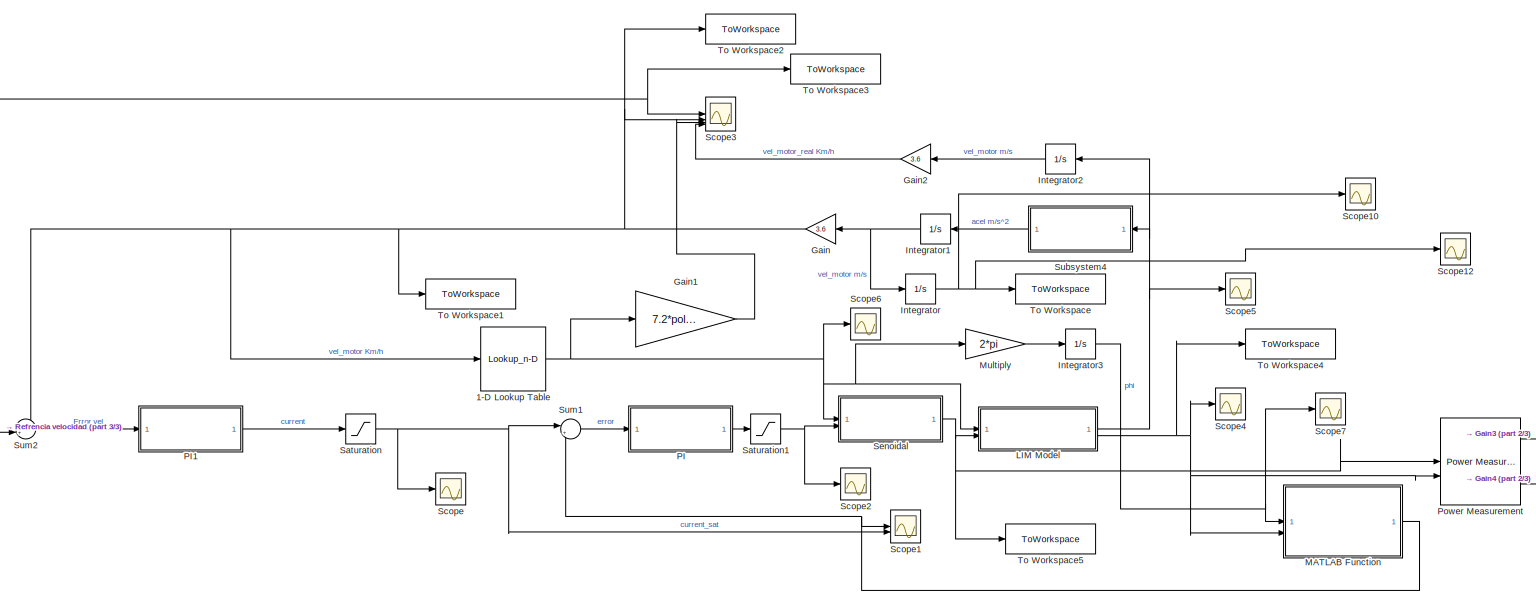
[diagram: root canvas - part 1/3, most of the canvas]
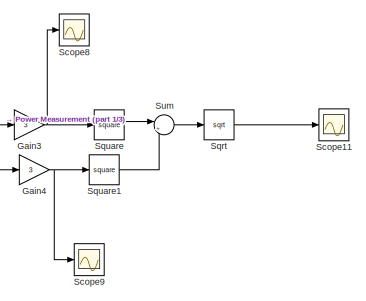
[diagram: root canvas - part 2/3, bottom right region]
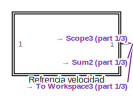
[diagram: root canvas - part 3/3, bottom left region]
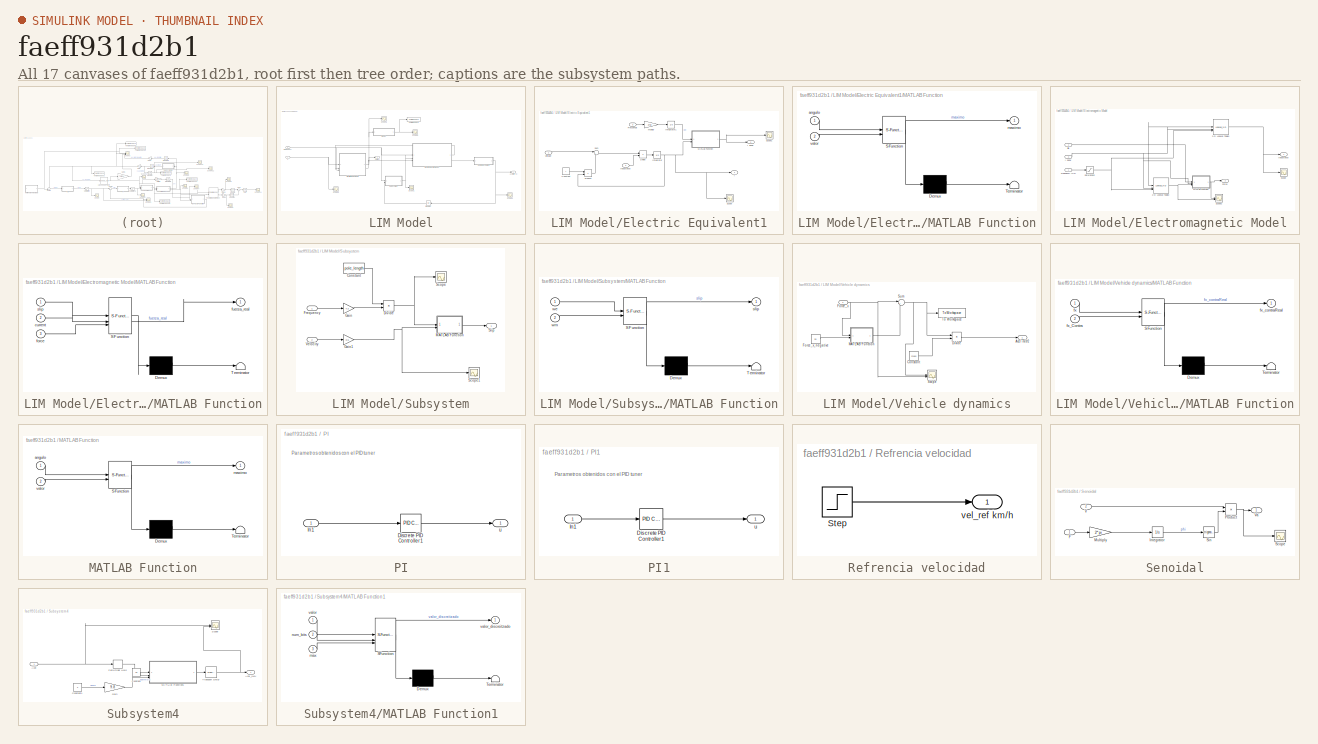
[diagram: thumbnail index - all 17 canvases of the model, root first then tree order]
MODEL slx_faeff931d2b1
KIND model
CONFIG AbsTol = auto
CONFIG EnableMultiTasking = off
CONFIG FixedStep = 0.01
CONFIG MaxStep = 0.00005
CONFIG MinStep = auto
CONFIG RelTol = 1e-3
CONFIG SampleTimeConstraint = Unconstrained
CONFIG SolverName = VariableStepAuto
CONFIG StartTime = 0.0
CONFIG StopTime = 4
BLOCK [Lookup_n-D] 1-D Lookup Table
  BreakpointsForDimension1 = vel_motor_max_f
  InputPortMap = u0
  InternalRulePriority = Speed
  NumberOfTableDimensions = 1
  RndMeth = Simplest
  Table = frec_max_f
BLOCK [Gain] Gain
  Gain = 3.6
  NameLocation = top
BLOCK [Gain] Gain1
  Gain = 7.2*pole_length
BLOCK [Gain] Gain2
  Gain = 3.6
  NameLocation = top
BLOCK [Gain] Gain3
  Gain = 3
BLOCK [Gain] Gain4
  Gain = 3
BLOCK [Integrator] Integrator
BLOCK [Integrator] Integrator1
  NameLocation = top
BLOCK [Integrator] Integrator2
  NameLocation = top
BLOCK [Integrator] Integrator3
  WrappedStateLowerValue = 0
  WrappedStateUpperValue = 2*pi
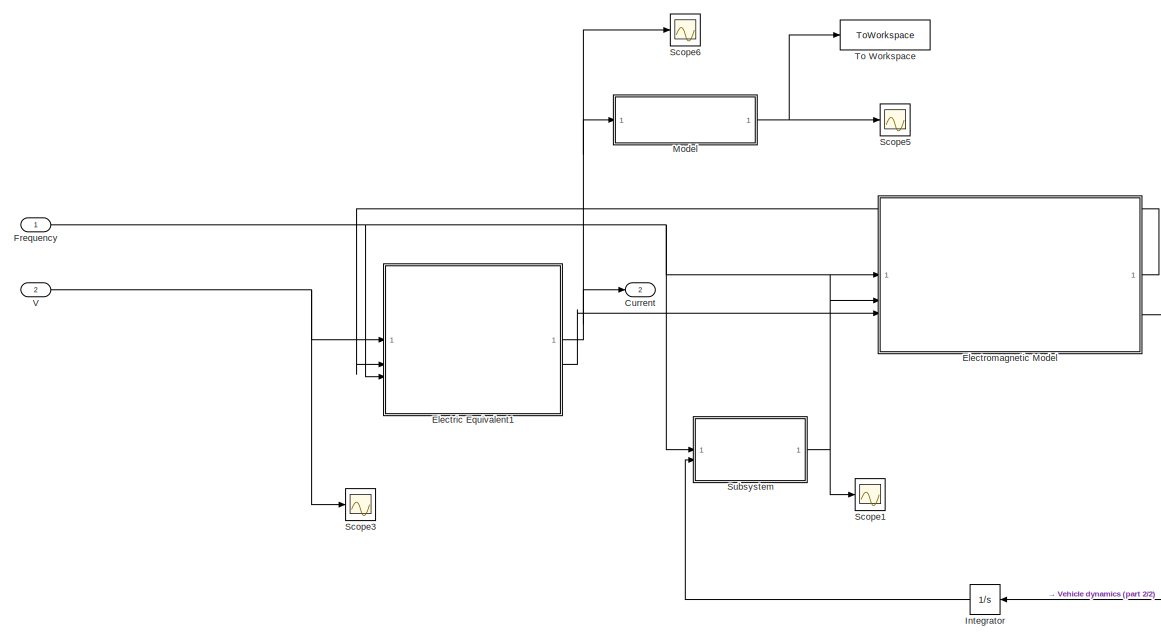
[diagram: LIM Model - part 1/2, center side, full height]
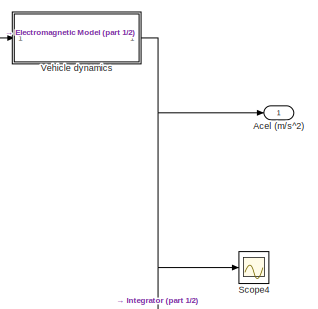
[diagram: LIM Model - part 2/2, bottom right region]
BLOCK [SubSystem] LIM Model
BLOCK [Outport] LIM Model/Acel (m//s^2)
BLOCK [Outport] LIM Model/Current
  Port = 2
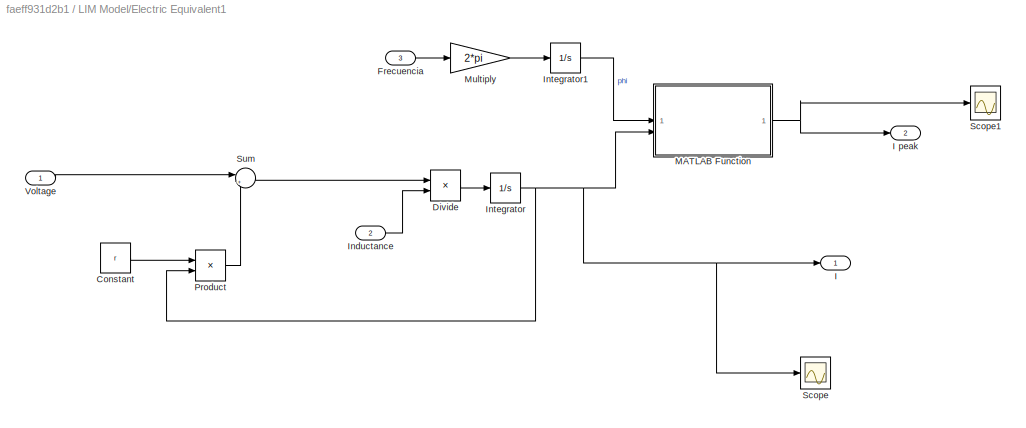
BLOCK [SubSystem] LIM Model/Electric Equivalent1
BLOCK [Constant] LIM Model/Electric Equivalent1/Constant
  Value = r
BLOCK [Product] LIM Model/Electric Equivalent1/Divide
  Inputs = */
BLOCK [Inport] LIM Model/Electric Equivalent1/Frecuencia
  Port = 3
BLOCK [Outport] LIM Model/Electric Equivalent1/I 
BLOCK [Outport] LIM Model/Electric Equivalent1/I peak
  Port = 2
BLOCK [Inport] LIM Model/Electric Equivalent1/Inductance
  Port = 2
BLOCK [Integrator] LIM Model/Electric Equivalent1/Integrator
BLOCK [Integrator] LIM Model/Electric Equivalent1/Integrator1
  WrappedStateLowerValue = 0
  WrappedStateUpperValue = 2*pi
BLOCK [SubSystem] LIM Model/Electric Equivalent1/MATLAB Function
  ErrorFcn = Stateflow.Translate.translate
  LibrarySourceBlock = simulink/User-Defined\nFunctions/MATLAB Function
  PermitHierarchicalResolution = ExplicitOnly
  SFBlockType = MATLAB Function
  TreatAsAtomicUnit = on
BLOCK [Demux] LIM Model/Electric Equivalent1/MATLAB Function/ Demux 
  Outputs = 1
BLOCK [S-Function] LIM Model/Electric Equivalent1/MATLAB Function/ SFunction 
  EnableBusSupport = on
  FunctionName = sf_sfun
  PortCounts = [2 2]
  SFcnIsStateOwnerBlock = off
  SFunctionDeploymentMode = off
  Tag = Stateflow S-Function 3
BLOCK [Terminator] LIM Model/Electric Equivalent1/MATLAB Function/ Terminator 
BLOCK [Inport] LIM Model/Electric Equivalent1/MATLAB Function/angulo
BLOCK [Outport] LIM Model/Electric Equivalent1/MATLAB Function/maximo
BLOCK [Inport] LIM Model/Electric Equivalent1/MATLAB Function/valor
  Port = 2
BLOCK [Gain] LIM Model/Electric Equivalent1/Multiply
  Gain = 2*pi
BLOCK [Product] LIM Model/Electric Equivalent1/Product
BLOCK [Scope] LIM Model/Electric Equivalent1/Scope
  Floating = off
  NumInputPorts = 1
  ScopeSpecificationString = Simulink.scopes.TimeScopeBlockCfg('CurrentConfiguration', extmgr.ConfigurationSet(extmgr.Configuration('Core','General UI',true),extmgr.Configuration('Core','Source UI',true),extmgr.Configuration('Sources','WiredSimulink',true,'DataLoggingVariableName','ScopeData1'),extmgr.Configuration('Visuals','Time Domain',true,'SerializedDisplays',{struct('MinYLimReal','-148.96883','MaxYLimReal','126.06169','...<+1458ch>
BLOCK [Scope] LIM Model/Electric Equivalent1/Scope1
  Floating = off
  NumInputPorts = 1
  ScopeSpecificationString = Simulink.scopes.TimeScopeBlockCfg('CurrentConfiguration', extmgr.ConfigurationSet(extmgr.Configuration('Core','General UI',true),extmgr.Configuration('Core','Source UI',true),extmgr.Configuration('Sources','WiredSimulink',true,'DataLoggingVariableName','ScopeData9'),extmgr.Configuration('Visuals','Time Domain',true,'SerializedDisplays',{struct('MinYLimReal','-11.61693','MaxYLimReal','104.55239','Y...<+1459ch>
BLOCK [Sum] LIM Model/Electric Equivalent1/Sum
  Inputs = |+-
BLOCK [Inport] LIM Model/Electric Equivalent1/Voltage
BLOCK [SubSystem] LIM Model/Electromagnetic Model
BLOCK [Lookup_n-D] LIM Model/Electromagnetic Model/2-D Lookup Table2
  BreakpointsForDimension1 = slipFuerza
  BreakpointsForDimension2 = Ipeak
  BreakpointsForDimension3 = frecuencia
  InputPortMap = u0,u1,u2
  InternalRulePriority = Speed
  NumberOfTableDimensions = 3
  RndMeth = Simplest
  Table = FuerzaXslip
BLOCK [Lookup_n-D] LIM Model/Electromagnetic Model/2-D Lookup Table3
  BreakpointsForDimension1 = Ipeak(2:(end-1))
  BreakpointsForDimension2 = slip
  BreakpointsForDimension3 = frecuencia
  InputPortMap = u0,u1,u2
  InternalRulePriority = Speed
  InterpMethod = Nearest
  NumberOfTableDimensions = 3
  RndMeth = Simplest
  Table = L
BLOCK [Outport] LIM Model/Electromagnetic Model/Force
  Port = 2
BLOCK [Inport] LIM Model/Electromagnetic Model/Frequency (Hz)
BLOCK [Inport] LIM Model/Electromagnetic Model/I peak
  Port = 3
BLOCK [Outport] LIM Model/Electromagnetic Model/Inductance
BLOCK [SubSystem] LIM Model/Electromagnetic Model/MATLAB Function
  ErrorFcn = Stateflow.Translate.translate
  LibrarySourceBlock = simulink/User-Defined\nFunctions/MATLAB Function
  PermitHierarchicalResolution = ExplicitOnly
  SFBlockType = MATLAB Function
  TreatAsAtomicUnit = on
BLOCK [Demux] LIM Model/Electromagnetic Model/MATLAB Function/ Demux 
  Outputs = 1
BLOCK [S-Function] LIM Model/Electromagnetic Model/MATLAB Function/ SFunction 
  EnableBusSupport = on
  FunctionName = sf_sfun
  PortCounts = [3 2]
  SFcnIsStateOwnerBlock = off
  SFunctionDeploymentMode = off
  Tag = Stateflow S-Function 1
BLOCK [Terminator] LIM Model/Electromagnetic Model/MATLAB Function/ Terminator 
BLOCK [Inport] LIM Model/Electromagnetic Model/MATLAB Function/current
  Port = 2
BLOCK [Inport] LIM Model/Electromagnetic Model/MATLAB Function/force
  Port = 3
BLOCK [Outport] LIM Model/Electromagnetic Model/MATLAB Function/fuerza_real
BLOCK [Inport] LIM Model/Electromagnetic Model/MATLAB Function/slip
BLOCK [Saturate] LIM Model/Electromagnetic Model/Saturation2
  LowerLimit = 3
  UpperLimit = 48
BLOCK [Scope] LIM Model/Electromagnetic Model/Scope
  Floating = off
  NumInputPorts = 1
  ScopeSpecificationString = Simulink.scopes.TimeScopeBlockCfg('CurrentConfiguration', extmgr.ConfigurationSet(extmgr.Configuration('Core','General UI',true),extmgr.Configuration('Core','Source UI',true),extmgr.Configuration('Sources','WiredSimulink',true,'DataLoggingVariableName','ScopeData3'),extmgr.Configuration('Visuals','Time Domain',true,'SerializedDisplays',{struct('MinYLimReal','0.00152','MaxYLimReal','0.00303','YLabe...<+1451ch>
BLOCK [Scope] LIM Model/Electromagnetic Model/Scope2
  Floating = off
  NumInputPorts = 2
  ScopeSpecificationString = Simulink.scopes.TimeScopeBlockCfg('CurrentConfiguration', extmgr.ConfigurationSet(extmgr.Configuration('Core','General UI',true),extmgr.Configuration('Core','Source UI',true),extmgr.Configuration('Sources','WiredSimulink',true,'DataLoggingVariableName','ScopeData2'),extmgr.Configuration('Visuals','Time Domain',true,'SerializedDisplays',{struct('MinYLimReal','-149.17628','MaxYLimReal','1159.19992',...<+1431ch>
BLOCK [Inport] LIM Model/Electromagnetic Model/Slip
  Port = 2
BLOCK [Inport] LIM Model/Frequency
BLOCK [Integrator] LIM Model/Integrator
  NameLocation = top
BLOCK [ModelReference] LIM Model/Model
  ModelNameDialog = Bloque_calentamiento.slx
  ModelReferenceVersion = 3.6
BLOCK [Scope] LIM Model/Scope1
  Floating = off
  NumInputPorts = 1
  ScopeSpecificationString = Simulink.scopes.TimeScopeBlockCfg('CurrentConfiguration', extmgr.ConfigurationSet(extmgr.Configuration('Core','General UI',true),extmgr.Configuration('Core','Source UI',true),extmgr.Configuration('Sources','WiredSimulink',true,'DataLoggingVariableName','ScopeData1'),extmgr.Configuration('Visuals','Time Domain',true,'SerializedDisplays',{struct('MinYLimReal','-0.00569','MaxYLimReal','1.11253','YLab...<+1441ch>
BLOCK [Scope] LIM Model/Scope3
  Floating = off
  NumInputPorts = 1
  ScopeSpecificationString = Simulink.scopes.TimeScopeBlockCfg('CurrentConfiguration', extmgr.ConfigurationSet(extmgr.Configuration('Core','General UI',true),extmgr.Configuration('Core','Source UI',true),extmgr.Configuration('Sources','WiredSimulink',true),extmgr.Configuration('Visuals','Time Domain',true,'SerializedDisplays',{struct('MinYLimReal','-72.13544','MaxYLimReal','72.08699','YLabelReal','','MinYLimMag','0.00000','Ma...<+1372ch>
BLOCK [Scope] LIM Model/Scope4
  Floating = off
  NumInputPorts = 1
  ScopeSpecificationString = Simulink.scopes.TimeScopeBlockCfg('CurrentConfiguration', extmgr.ConfigurationSet(extmgr.Configuration('Core','General UI',true),extmgr.Configuration('Core','Source UI',true),extmgr.Configuration('Sources','WiredSimulink',true,'DataLoggingVariableName','ScopeData3'),extmgr.Configuration('Visuals','Time Domain',true,'SerializedDisplays',{struct('MinYLimReal','-0.63171','MaxYLimReal','5.68538','YLab...<+1408ch>
BLOCK [Scope] LIM Model/Scope5
  Floating = off
  NumInputPorts = 1
  ScopeSpecificationString = Simulink.scopes.TimeScopeBlockCfg('CurrentConfiguration', extmgr.ConfigurationSet(extmgr.Configuration('Core','General UI',true),extmgr.Configuration('Core','Source UI',true),extmgr.Configuration('Sources','WiredSimulink',true,'DataLoggingVariableName','ScopeData6'),extmgr.Configuration('Visuals','Time Domain',true,'SerializedDisplays',{struct('MinYLimReal','38.84294','MaxYLimReal','50.41353','YLa...<+1395ch>
BLOCK [Scope] LIM Model/Scope6
  Floating = off
  NumInputPorts = 1
  ScopeSpecificationString = Simulink.scopes.TimeScopeBlockCfg('CurrentConfiguration', extmgr.ConfigurationSet(extmgr.Configuration('Core','General UI',true),extmgr.Configuration('Core','Source UI',true),extmgr.Configuration('Sources','WiredSimulink',true,'DataLoggingVariableName','ScopeData4'),extmgr.Configuration('Visuals','Time Domain',true,'SerializedDisplays',{struct('MinYLimReal','-123.61481','MaxYLimReal','123.75772','...<+1468ch>
BLOCK [SubSystem] LIM Model/Subsystem
BLOCK [Constant] LIM Model/Subsystem/Constant
  Value = pole_length
BLOCK [Product] LIM Model/Subsystem/Divide
  Inputs = **
BLOCK [Inport] LIM Model/Subsystem/Frequency
BLOCK [Gain] LIM Model/Subsystem/Gain
  Gain = 7.2
BLOCK [Gain] LIM Model/Subsystem/Gain1
  Gain = 3.6
BLOCK [SubSystem] LIM Model/Subsystem/MATLAB Function
  ErrorFcn = Stateflow.Translate.translate
  PermitHierarchicalResolution = ExplicitOnly
  SFBlockType = MATLAB Function
  TreatAsAtomicUnit = on
BLOCK [Demux] LIM Model/Subsystem/MATLAB Function/ Demux 
  Outputs = 1
BLOCK [S-Function] LIM Model/Subsystem/MATLAB Function/ SFunction 
  EnableBusSupport = on
  FunctionName = sf_sfun
  PortCounts = [2 2]
  SFcnIsStateOwnerBlock = off
  SFunctionDeploymentMode = off
  Tag = Stateflow S-Function 4
BLOCK [Terminator] LIM Model/Subsystem/MATLAB Function/ Terminator 
BLOCK [Outport] LIM Model/Subsystem/MATLAB Function/slip
BLOCK [Inport] LIM Model/Subsystem/MATLAB Function/we
BLOCK [Inport] LIM Model/Subsystem/MATLAB Function/wm
  Port = 2
BLOCK [Scope] LIM Model/Subsystem/Scope
  Floating = off
  NumInputPorts = 1
  ScopeSpecificationString = Simulink.scopes.TimeScopeBlockCfg('CurrentConfiguration', extmgr.ConfigurationSet(extmgr.Configuration('Core','General UI',true),extmgr.Configuration('Core','Source UI',true),extmgr.Configuration('Sources','WiredSimulink',true,'DataLoggingVariableName','ScopeData2'),extmgr.Configuration('Visuals','Time Domain',true,'SerializedDisplays',{struct('MinYLimReal','25.2944','MaxYLimReal','45.2944','YLabe...<+1427ch>
BLOCK [Scope] LIM Model/Subsystem/Scope1
  Floating = off
  NumInputPorts = 1
  ScopeSpecificationString = Simulink.scopes.TimeScopeBlockCfg('CurrentConfiguration', extmgr.ConfigurationSet(extmgr.Configuration('Core','General UI',true),extmgr.Configuration('Core','Source UI',true),extmgr.Configuration('Sources','WiredSimulink',true,'DataLoggingVariableName','ScopeData4'),extmgr.Configuration('Visuals','Time Domain',true,'SerializedDisplays',{struct('MinYLimReal','-4.30459','MaxYLimReal','38.74132','YLa...<+1418ch>
BLOCK [Outport] LIM Model/Subsystem/Slip
BLOCK [Inport] LIM Model/Subsystem/Velocity
  Port = 2
BLOCK [ToWorkspace] LIM Model/To Workspace
  FixptAsFi = on
  MaxDataPoints = inf
  SampleTime = -1
  VariableName = Temp
BLOCK [Inport] LIM Model/V 
  Port = 2
BLOCK [SubSystem] LIM Model/Vehicle dynamics
BLOCK [Outport] LIM Model/Vehicle dynamics/Acel m//s^2
BLOCK [Constant] LIM Model/Vehicle dynamics/Constant
  Value = mass
BLOCK [Product] LIM Model/Vehicle dynamics/Divide
  Inputs = */
BLOCK [Inport] LIM Model/Vehicle dynamics/Force_x
BLOCK [Constant] LIM Model/Vehicle dynamics/Force_x_negative
  Value = 20
BLOCK [SubSystem] LIM Model/Vehicle dynamics/MATLAB Function
  ErrorFcn = Stateflow.Translate.translate
  LibrarySourceBlock = simulink/User-Defined\nFunctions/MATLAB Function
  PermitHierarchicalResolution = ExplicitOnly
  SFBlockType = MATLAB Function
  TreatAsAtomicUnit = on
BLOCK [Demux] LIM Model/Vehicle dynamics/MATLAB Function/ Demux 
  Outputs = 1
BLOCK [S-Function] LIM Model/Vehicle dynamics/MATLAB Function/ SFunction 
  EnableBusSupport = on
  FunctionName = sf_sfun
  PortCounts = [2 2]
  SFcnIsStateOwnerBlock = off
  SFunctionDeploymentMode = off
  Tag = Stateflow S-Function 2
BLOCK [Terminator] LIM Model/Vehicle dynamics/MATLAB Function/ Terminator 
BLOCK [Inport] LIM Model/Vehicle dynamics/MATLAB Function/fx
BLOCK [Inport] LIM Model/Vehicle dynamics/MATLAB Function/fx_Contra
  Port = 2
BLOCK [Outport] LIM Model/Vehicle dynamics/MATLAB Function/fx_contraReal
BLOCK [Scope] LIM Model/Vehicle dynamics/Scope
  Floating = off
  NumInputPorts = 2
  ScopeSpecificationString = Simulink.scopes.TimeScopeBlockCfg('CurrentConfiguration', extmgr.ConfigurationSet(extmgr.Configuration('Core','General UI',true),extmgr.Configuration('Core','Source UI',true),extmgr.Configuration('Sources','WiredSimulink',true,'DataLoggingVariableName','ScopeData11'),extmgr.Configuration('Visuals','Time Domain',true,'SerializedDisplays',{struct('MinYLimReal','765.61966','MaxYLimReal','1101.18771',...<+1435ch>
BLOCK [Sum] LIM Model/Vehicle dynamics/Sum
  Inputs = |+-
BLOCK [ToWorkspace] LIM Model/Vehicle dynamics/To Workspace
  FixptAsFi = on
  MaxDataPoints = inf
  SampleTime = -1
  VariableName = forceX
BLOCK [SubSystem] MATLAB Function
  ErrorFcn = Stateflow.Translate.translate
  LibrarySourceBlock = simulink/User-Defined\nFunctions/MATLAB Function
  PermitHierarchicalResolution = ExplicitOnly
  SFBlockType = MATLAB Function
  TreatAsAtomicUnit = on
BLOCK [Demux] MATLAB Function/ Demux 
  Outputs = 1
BLOCK [S-Function] MATLAB Function/ SFunction 
  EnableBusSupport = on
  FunctionName = sf_sfun
  PortCounts = [2 2]
  SFcnIsStateOwnerBlock = off
  SFunctionDeploymentMode = off
  Tag = Stateflow S-Function 5
BLOCK [Terminator] MATLAB Function/ Terminator 
BLOCK [Inport] MATLAB Function/angulo
BLOCK [Outport] MATLAB Function/maximo
BLOCK [Inport] MATLAB Function/valor
  Port = 2
BLOCK [Gain] Multiply
  Gain = 2*pi
BLOCK [SubSystem] PI
BLOCK [Reference] PI/Discrete PID Controller1  REF=slpidlib/PID Controller
  LibrarySourceBlock = simulink/Discrete/Discrete PID Controller
  SourceBlock = slpidlib/PID Controller
  SourceType = PID 1dof
BLOCK [Inport] PI/In1
BLOCK [Outport] PI/u
BLOCK [SubSystem] PI1
BLOCK [Reference] PI1/Discrete PID Controller1  REF=slpidlib/PID Controller
  LibrarySourceBlock = simulink/Discrete/Discrete PID Controller
  SourceBlock = slpidlib/PID Controller
  SourceType = PID 1dof
BLOCK [Inport] PI1/In1
BLOCK [Outport] PI1/u
BLOCK [Reference] Power Measurement  REF=eePowerMeasurement/Power
Measurement
  LibrarySourceBlock = ee_sl_lib/Measurements/Power\nMeasurement
  SourceBlock = eePowerMeasurement/Power\nMeasurement
  SourceType = Power Measurement
BLOCK [SubSystem] Refrencia velocidad
BLOCK [Step] Refrencia velocidad/Step
  After = 35
  SampleTime = 0
  Time = 0.5
BLOCK [Outport] Refrencia velocidad/vel_ref km//h
BLOCK [Saturate] Saturation
  LowerLimit = -100
  UpperLimit = 100
BLOCK [Saturate] Saturation1
  LowerLimit = -200
  UpperLimit = 200
BLOCK [Scope] Scope
  Floating = off
  NumInputPorts = 1
  ScopeSpecificationString = Simulink.scopes.TimeScopeBlockCfg('CurrentConfiguration', extmgr.ConfigurationSet(extmgr.Configuration('Core','General UI',true),extmgr.Configuration('Core','Source UI',true),extmgr.Configuration('Sources','WiredSimulink',true,'DataLoggingVariableName','ScopeData3'),extmgr.Configuration('Visuals','Time Domain',true,'SerializedDisplays',{struct('MinYLimReal','-12.5','MaxYLimReal','112.5','YLabelRea...<+1385ch>
BLOCK [Scope] Scope1
  Floating = off
  NumInputPorts = 2
  ScopeSpecificationString = Simulink.scopes.TimeScopeBlockCfg('CurrentConfiguration', extmgr.ConfigurationSet(extmgr.Configuration('Core','General UI',true),extmgr.Configuration('Core','Source UI',true),extmgr.Configuration('Sources','WiredSimulink',true,'DataLoggingVariableName','ScopeData7'),extmgr.Configuration('Visuals','Time Domain',true,'SerializedDisplays',{struct('MinYLimReal','-12.5','MaxYLimReal','112.5','YLabelRea...<+1401ch>
BLOCK [Scope] Scope10
  Floating = off
  NumInputPorts = 1
  ScopeSpecificationString = Simulink.scopes.TimeScopeBlockCfg('CurrentConfiguration', extmgr.ConfigurationSet(extmgr.Configuration('Core','General UI',true),extmgr.Configuration('Core','Source UI',true),extmgr.Configuration('Sources','WiredSimulink',true,'DataLoggingVariableName','ScopeData4'),extmgr.Configuration('Visuals','Time Domain',true,'SerializedDisplays',{struct('MinYLimReal','-2.89532','MaxYLimReal','26.05736','YLa...<+1373ch>
BLOCK [Scope] Scope11
  Floating = off
  NumInputPorts = 1
  ScopeSpecificationString = Simulink.scopes.TimeScopeBlockCfg('CurrentConfiguration', extmgr.ConfigurationSet(extmgr.Configuration('Core','General UI',true),extmgr.Configuration('Core','Source UI',true),extmgr.Configuration('Sources','WiredSimulink',true,'DataLoggingVariableName','ScopeData5'),extmgr.Configuration('Visuals','Time Domain',true,'SerializedDisplays',{struct('MinYLimReal','-898.12979','MaxYLimReal','8083.16814',...<+1419ch>
BLOCK [Scope] Scope12
  Floating = off
  NumInputPorts = 1
  ScopeSpecificationString = Simulink.scopes.TimeScopeBlockCfg('CurrentConfiguration', extmgr.ConfigurationSet(extmgr.Configuration('Core','General UI',true),extmgr.Configuration('Core','Source UI',true),extmgr.Configuration('Sources','WiredSimulink',true,'DataLoggingVariableName','ScopeData6'),extmgr.Configuration('Visuals','Time Domain',true,'SerializedDisplays',{struct('MinYLimReal','-2.89532','MaxYLimReal','26.05736','YLa...<+1373ch>
BLOCK [Scope] Scope2
  Floating = off
  NumInputPorts = 1
  ScopeSpecificationString = Simulink.scopes.TimeScopeBlockCfg('CurrentConfiguration', extmgr.ConfigurationSet(extmgr.Configuration('Core','General UI',true),extmgr.Configuration('Core','Source UI',true),extmgr.Configuration('Sources','WiredSimulink',true,'DataLoggingVariableName','ScopeData8'),extmgr.Configuration('Visuals','Time Domain',true,'SerializedDisplays',{struct('MinYLimReal','-231.15042','MaxYLimReal','80.35376','Y...<+1401ch>
BLOCK [Scope] Scope3
  Floating = off
  NumInputPorts = 4
  ScopeSpecificationString = Simulink.scopes.TimeScopeBlockCfg('CurrentConfiguration', extmgr.ConfigurationSet(extmgr.Configuration('Core','General UI',true),extmgr.Configuration('Core','Source UI',true),extmgr.Configuration('Sources','WiredSimulink',true,'DataLoggingVariableName','ScopeData1'),extmgr.Configuration('Visuals','Time Domain',true,'SerializedDisplays',{struct('MinYLimReal','-4.92481','MaxYLimReal','44.3232','YLab...<+1589ch>
BLOCK [Scope] Scope4
  Floating = off
  NumInputPorts = 1
  ScopeSpecificationString = Simulink.scopes.TimeScopeBlockCfg('CurrentConfiguration', extmgr.ConfigurationSet(extmgr.Configuration('Core','General UI',true),extmgr.Configuration('Core','Source UI',true),extmgr.Configuration('Sources','WiredSimulink',true,'DataLoggingVariableName','ScopeData1'),extmgr.Configuration('Visuals','Time Domain',true,'SerializedDisplays',{struct('MinYLimReal','-536.00072','MaxYLimReal','547.10398','...<+1496ch>
BLOCK [Scope] Scope5
  Floating = off
  NumInputPorts = 1
  ScopeSpecificationString = Simulink.scopes.TimeScopeBlockCfg('CurrentConfiguration', extmgr.ConfigurationSet(extmgr.Configuration('Core','General UI',true),extmgr.Configuration('Core','Source UI',true),extmgr.Configuration('Sources','WiredSimulink',true,'DataLoggingVariableName','ScopeData10'),extmgr.Configuration('Visuals','Time Domain',true,'SerializedDisplays',{struct('MinYLimReal','-0.62906','MaxYLimReal','5.6615','YLab...<+1367ch>
BLOCK [Scope] Scope6
  Floating = off
  NumInputPorts = 1
  ScopeSpecificationString = Simulink.scopes.TimeScopeBlockCfg('CurrentConfiguration', extmgr.ConfigurationSet(extmgr.Configuration('Core','General UI',true),extmgr.Configuration('Core','Source UI',true),extmgr.Configuration('Sources','WiredSimulink',true,'DataLoggingVariableName','ScopeData12'),extmgr.Configuration('Visuals','Time Domain',true,'SerializedDisplays',{struct('MinYLimReal','4.12497','MaxYLimReal','52.875','YLabe...<+1370ch>
BLOCK [Scope] Scope7
  Floating = off
  NumInputPorts = 1
  ScopeSpecificationString = Simulink.scopes.TimeScopeBlockCfg('CurrentConfiguration', extmgr.ConfigurationSet(extmgr.Configuration('Core','General UI',true),extmgr.Configuration('Core','Source UI',true),extmgr.Configuration('Sources','WiredSimulink',true,'DataLoggingVariableName','ScopeData1'),extmgr.Configuration('Visuals','Time Domain',true,'SerializedDisplays',{struct('MinYLimReal','-105.20811','MaxYLimReal','946.87302','...<+1376ch>
BLOCK [Scope] Scope8
  Floating = off
  NumInputPorts = 1
  ScopeSpecificationString = Simulink.scopes.TimeScopeBlockCfg('CurrentConfiguration', extmgr.ConfigurationSet(extmgr.Configuration('Core','General UI',true),extmgr.Configuration('Core','Source UI',true),extmgr.Configuration('Sources','WiredSimulink',true,'DataLoggingVariableName','ScopeData2'),extmgr.Configuration('Visuals','Time Domain',true,'SerializedDisplays',{struct('MinYLimReal','-713.68786','MaxYLimReal','6221.7084','...<+1584ch>
BLOCK [Scope] Scope9
  Floating = off
  NumInputPorts = 1
  ScopeSpecificationString = Simulink.scopes.TimeScopeBlockCfg('CurrentConfiguration', extmgr.ConfigurationSet(extmgr.Configuration('Core','General UI',true),extmgr.Configuration('Core','Source UI',true),extmgr.Configuration('Sources','WiredSimulink',true,'DataLoggingVariableName','ScopeData3'),extmgr.Configuration('Visuals','Time Domain',true,'SerializedDisplays',{struct('MinYLimReal','-593.91624','MaxYLimReal','5271.3829','...<+1418ch>
BLOCK [SubSystem] Senoidal
BLOCK [Inport] Senoidal/F
BLOCK [Integrator] Senoidal/Integrator
  WrapState = on
  WrappedStateLowerValue = 0
  WrappedStateUpperValue = 2*pi
BLOCK [Gain] Senoidal/Multiply
  Gain = 2*pi
BLOCK [Product] Senoidal/Product
BLOCK [Scope] Senoidal/Scope
  Floating = off
  NumInputPorts = 1
  ScopeSpecificationString = Simulink.scopes.TimeScopeBlockCfg('CurrentConfiguration', extmgr.ConfigurationSet(extmgr.Configuration('Core','General UI',true),extmgr.Configuration('Core','Source UI',true),extmgr.Configuration('Sources','WiredSimulink',true,'DataLoggingVariableName','ScopeData5'),extmgr.Configuration('Visuals','Time Domain',true,'SerializedDisplays',{struct('MinYLimReal','-34.93759','MaxYLimReal','28.58656','YL...<+1391ch>
BLOCK [Trigonometry] Senoidal/Sin
BLOCK [Inport] Senoidal/V
  Port = 2
BLOCK [Outport] Senoidal/Va
BLOCK [Sqrt] Sqrt
BLOCK [Math] Square
  Operator = square
BLOCK [Math] Square1
  Operator = square
BLOCK [SubSystem] Subsystem4
  NameLocation = top
BLOCK [Inport] Subsystem4/Acel
BLOCK [Outport] Subsystem4/Acel_IMU
BLOCK [Constant] Subsystem4/Constant
  Value = 16
BLOCK [Constant] Subsystem4/Constant1
  Value = 2
BLOCK [Gain] Subsystem4/Gain
  Gain = 9.8
BLOCK [SubSystem] Subsystem4/MATLAB Function1
  ErrorFcn = Stateflow.Translate.translate
  LibrarySourceBlock = simulink/User-Defined\nFunctions/MATLAB Function
  PermitHierarchicalResolution = ExplicitOnly
  SFBlockType = MATLAB Function
  TreatAsAtomicUnit = on
BLOCK [Demux] Subsystem4/MATLAB Function1/ Demux 
  Outputs = 1
BLOCK [S-Function] Subsystem4/MATLAB Function1/ SFunction 
  EnableBusSupport = on
  FunctionName = sf_sfun
  PortCounts = [3 2]
  SFcnIsStateOwnerBlock = off
  SFunctionDeploymentMode = off
  Tag = Stateflow S-Function 9
BLOCK [Terminator] Subsystem4/MATLAB Function1/ Terminator 
BLOCK [Inport] Subsystem4/MATLAB Function1/max
  Port = 3
BLOCK [Inport] Subsystem4/MATLAB Function1/num_bits
  Port = 2
BLOCK [Inport] Subsystem4/MATLAB Function1/valor
BLOCK [Outport] Subsystem4/MATLAB Function1/valor_discreitzado
BLOCK [Scope] Subsystem4/Scope
  Floating = off
  NumInputPorts = 2
  ScopeSpecificationString = Simulink.scopes.TimeScopeBlockCfg('CurrentConfiguration', extmgr.ConfigurationSet(extmgr.Configuration('Core','General UI',true),extmgr.Configuration('Core','Source UI',true),extmgr.Configuration('Sources','WiredSimulink',true,'DataLoggingVariableName','ScopeData3'),extmgr.Configuration('Visuals','Time Domain',true,'SerializedDisplays',{struct('MinYLimReal','2.97777','MaxYLimReal','3.36893','YLabe...<+1456ch>
BLOCK [TransportDelay] Subsystem4/Transport Delay
  DelayTime = 0.001
BLOCK [ZeroOrderHold] Subsystem4/Zero-Order Hold
  SampleTime = 0.001
BLOCK [Sum] Sum
  Inputs = |++
BLOCK [Sum] Sum1
  Inputs = |+-
BLOCK [Sum] Sum2
  Inputs = -+|
BLOCK [ToWorkspace] To Workspace
  FixptAsFi = on
  MaxDataPoints = inf
  SampleTime = -1
  VariableName = pos
BLOCK [ToWorkspace] To Workspace1
  FixptAsFi = on
  MaxDataPoints = inf
  SampleTime = -1
  VariableName = vel
BLOCK [ToWorkspace] To Workspace2
  FixptAsFi = on
  MaxDataPoints = inf
  SampleTime = -1
  VariableName = vel_motor
BLOCK [ToWorkspace] To Workspace3
  FixptAsFi = on
  MaxDataPoints = inf
  SampleTime = -1
  VariableName = vel_ref
BLOCK [ToWorkspace] To Workspace4
  FixptAsFi = on
  MaxDataPoints = inf
  SampleTime = -1
  VariableName = current
BLOCK [ToWorkspace] To Workspace5
  FixptAsFi = on
  MaxDataPoints = inf
  SampleTime = -1
  SaveFormat = Timeseries
  VariableName = voltageA
ANNOTATION PI: Parametros obtenidos con el PID tuner
ANNOTATION PI1: Parametros obtenidos con el PID tuner
NET 1-D Lookup Table:1 -> Gain1:1, LIM Model:1, Multiply:1, Scope6:1, Senoidal:1
LINE Gain1:1 -> Scope3:3
LINE Gain2:1 -> Scope3:4
NET Gain3:1 -> Scope8:1, Square:1
NET Gain4:1 -> Scope9:1, Square1:1
NET Gain:1 -> 1-D Lookup Table:1, Scope3:2, Sum2:1, To Workspace1:1, To Workspace2:1
NET Integrator1:1 -> Gain:1, Integrator:1
LINE Integrator2:1 -> Gain2:1
NET Integrator3:1 -> MATLAB Function:1, Scope7:1
NET Integrator:1 -> Scope10:1, Scope12:1, To Workspace:1
LINE LIM Model/Electric Equivalent1/Constant:1 -> LIM Model/Electric Equivalent1/Product:1
LINE LIM Model/Electric Equivalent1/Divide:1 -> LIM Model/Electric Equivalent1/Integrator:1
LINE LIM Model/Electric Equivalent1/Frecuencia:1 -> LIM Model/Electric Equivalent1/Multiply:1
LINE LIM Model/Electric Equivalent1/Inductance:1 -> LIM Model/Electric Equivalent1/Divide:2
LINE LIM Model/Electric Equivalent1/Integrator1:1 -> LIM Model/Electric Equivalent1/MATLAB Function:1
NET LIM Model/Electric Equivalent1/Integrator:1 -> LIM Model/Electric Equivalent1/I :1, LIM Model/Electric Equivalent1/MATLAB Function:2, LIM Model/Electric Equivalent1/Product:2, LIM Model/Electric Equivalent1/Scope:1
NET LIM Model/Electric Equivalent1/MATLAB Function:1 -> LIM Model/Electric Equivalent1/I peak:1, LIM Model/Electric Equivalent1/Scope1:1
LINE LIM Model/Electric Equivalent1/Multiply:1 -> LIM Model/Electric Equivalent1/Integrator1:1
LINE LIM Model/Electric Equivalent1/Product:1 -> LIM Model/Electric Equivalent1/Sum:2
LINE LIM Model/Electric Equivalent1/Sum:1 -> LIM Model/Electric Equivalent1/Divide:1
LINE LIM Model/Electric Equivalent1/Voltage:1 -> LIM Model/Electric Equivalent1/Sum:1
NET LIM Model/Electric Equivalent1:1 -> LIM Model/Current:1, LIM Model/Model:1, LIM Model/Scope6:1
LINE LIM Model/Electric Equivalent1:2 -> LIM Model/Electromagnetic Model:3
NET LIM Model/Electromagnetic Model/2-D Lookup Table2:1 -> LIM Model/Electromagnetic Model/MATLAB Function:3, LIM Model/Electromagnetic Model/Scope2:2
NET LIM Model/Electromagnetic Model/2-D Lookup Table3:1 -> LIM Model/Electromagnetic Model/Inductance:1, LIM Model/Electromagnetic Model/Scope:1
LINE LIM Model/Electromagnetic Model/Frequency (Hz):1 -> LIM Model/Electromagnetic Model/Saturation2:1
NET LIM Model/Electromagnetic Model/I peak:1 -> LIM Model/Electromagnetic Model/2-D Lookup Table2:2, LIM Model/Electromagnetic Model/2-D Lookup Table3:2, LIM Model/Electromagnetic Model/MATLAB Function:2
NET LIM Model/Electromagnetic Model/MATLAB Function:1 -> LIM Model/Electromagnetic Model/Force:1, LIM Model/Electromagnetic Model/Scope2:1
NET LIM Model/Electromagnetic Model/Saturation2:1 -> LIM Model/Electromagnetic Model/2-D Lookup Table2:3, LIM Model/Electromagnetic Model/2-D Lookup Table3:3
NET LIM Model/Electromagnetic Model/Slip:1 -> LIM Model/Electromagnetic Model/2-D Lookup Table2:1, LIM Model/Electromagnetic Model/2-D Lookup Table3:1, LIM Model/Electromagnetic Model/MATLAB Function:1
LINE LIM Model/Electromagnetic Model:1 -> LIM Model/Electric Equivalent1:2
LINE LIM Model/Electromagnetic Model:2 -> LIM Model/Vehicle dynamics:1
NET LIM Model/Frequency:1 -> LIM Model/Electric Equivalent1:3, LIM Model/Electromagnetic Model:1, LIM Model/Subsystem:1
LINE LIM Model/Integrator:1 -> LIM Model/Subsystem:2
NET LIM Model/Model:1 -> LIM Model/Scope5:1, LIM Model/To Workspace:1
LINE LIM Model/Subsystem/Constant:1 -> LIM Model/Subsystem/Divide:1
NET LIM Model/Subsystem/Divide:1 -> LIM Model/Subsystem/MATLAB Function:1, LIM Model/Subsystem/Scope:1
LINE LIM Model/Subsystem/Frequency:1 -> LIM Model/Subsystem/Gain:1
NET LIM Model/Subsystem/Gain1:1 -> LIM Model/Subsystem/MATLAB Function:2, LIM Model/Subsystem/Scope1:1
LINE LIM Model/Subsystem/Gain:1 -> LIM Model/Subsystem/Divide:2
LINE LIM Model/Subsystem/MATLAB Function:1 -> LIM Model/Subsystem/Slip:1
LINE LIM Model/Subsystem/Velocity:1 -> LIM Model/Subsystem/Gain1:1
NET LIM Model/Subsystem:1 -> LIM Model/Electromagnetic Model:2, LIM Model/Scope1:1
NET LIM Model/V :1 -> LIM Model/Electric Equivalent1:1, LIM Model/Scope3:1
LINE LIM Model/Vehicle dynamics/Constant:1 -> LIM Model/Vehicle dynamics/Divide:2
LINE LIM Model/Vehicle dynamics/Divide:1 -> LIM Model/Vehicle dynamics/Acel m//s^2:1
NET LIM Model/Vehicle dynamics/Force_x:1 -> LIM Model/Vehicle dynamics/MATLAB Function:1, LIM Model/Vehicle dynamics/Scope:2, LIM Model/Vehicle dynamics/Sum:1
LINE LIM Model/Vehicle dynamics/Force_x_negative:1 -> LIM Model/Vehicle dynamics/MATLAB Function:2
LINE LIM Model/Vehicle dynamics/MATLAB Function:1 -> LIM Model/Vehicle dynamics/Sum:2
NET LIM Model/Vehicle dynamics/Sum:1 -> LIM Model/Vehicle dynamics/Divide:1, LIM Model/Vehicle dynamics/Scope:1, LIM Model/Vehicle dynamics/To Workspace:1
NET LIM Model/Vehicle dynamics:1 -> LIM Model/Acel (m//s^2):1, LIM Model/Integrator:1, LIM Model/Scope4:1
NET LIM Model:1 -> Integrator2:1, Scope5:1, Subsystem4:1
NET LIM Model:2 -> MATLAB Function:2, Power Measurement:2, Scope4:1, To Workspace4:1
NET MATLAB Function:1 -> Scope1:1, Sum1:2
LINE Multiply:1 -> Integrator3:1
LINE PI/Discrete PID Controller1:1 -> PI/u:1
LINE PI/In1:1 -> PI/Discrete PID Controller1:1
LINE PI1/Discrete PID Controller1:1 -> PI1/u:1
LINE PI1/In1:1 -> PI1/Discrete PID Controller1:1
LINE PI1:1 -> Saturation:1
LINE PI:1 -> Saturation1:1
LINE Power Measurement:1 -> Gain3:1
LINE Power Measurement:2 -> Gain4:1
LINE Refrencia velocidad/Step:1 -> Refrencia velocidad/vel_ref km//h:1
NET Refrencia velocidad:1 -> Scope3:1, Sum2:2, To Workspace3:1
NET Saturation1:1 -> Scope2:1, Senoidal:2
NET Saturation:1 -> Scope1:2, Scope:1, Sum1:1
LINE Senoidal/F:1 -> Senoidal/Multiply:1
LINE Senoidal/Integrator:1 -> Senoidal/Sin:1
LINE Senoidal/Multiply:1 -> Senoidal/Integrator:1
NET Senoidal/Product:1 -> Senoidal/Scope:1, Senoidal/Va:1
LINE Senoidal/Sin:1 -> Senoidal/Product:2
LINE Senoidal/V:1 -> Senoidal/Product:1
NET Senoidal:1 -> LIM Model:2, Power Measurement:1, To Workspace5:1
LINE Sqrt:1 -> Scope11:1
LINE Square1:1 -> Sum:2
LINE Square:1 -> Sum:1
NET Subsystem4/Acel:1 -> Subsystem4/Scope:1, Subsystem4/Zero-Order Hold:1
LINE Subsystem4/Constant1:1 -> Subsystem4/Gain:1
LINE Subsystem4/Constant:1 -> Subsystem4/MATLAB Function1:2
LINE Subsystem4/Gain:1 -> Subsystem4/MATLAB Function1:3
LINE Subsystem4/MATLAB Function1:1 -> Subsystem4/Transport Delay:1
NET Subsystem4/Transport Delay:1 -> Subsystem4/Acel_IMU:1, Subsystem4/Scope:2
LINE Subsystem4/Zero-Order Hold:1 -> Subsystem4/MATLAB Function1:1
LINE Subsystem4:1 -> Integrator1:1
LINE Sum1:1 -> PI:1
LINE Sum2:1 -> PI1:1
LINE Sum:1 -> Sqrt:1
note: NET lines group one-source signal fan-out (src -> all destinations, sorted); 1:1 wires keep LINE
CHART LIM Model/Electromagnetic Model/MATLAB Function states=1 transitions=1
  STATE_LABEL 'eML_blk_kernel()'
  STATE_LABEL 'SCRIPT:\nfunction fuerza_real = fcn(slip,current,force)\n\n\nif slip == 0 || current== 0\n\n    fuerza_real=0;\n\nelseif slip<0 \n    fuerza_real=-abs(force);\nelse\n    fuerza_real=force;\nend\n'
CHART LIM Model/Vehicle dynamics/MATLAB Function states=1 transitions=1
  STATE_LABEL 'eML_blk_kernel()'
  STATE_LABEL 'SCRIPT:\nfunction fx_contraReal = fcn(fx,fx_Contra)\n\n\nif fx>fx_Contra\n    fx_contraReal=fx_Contra;\nelse\n    fx_contraReal=fx;\nend\n\n'
CHART LIM Model/Electric Equivalent1/MATLAB Function states=1 transitions=1
  STATE_LABEL 'eML_blk_kernel()'
  STATE_LABEL 'SCRIPT:\nfunction maximo = fcn(angulo,valor)\n\n   persistent antiguo_maximo\n    if isempty(antiguo_maximo)\n       antiguo_maximo=0;\n    end\n    persistent angulo_maximo\n    if isempty(angulo_maximo)\n       angulo_maximo=0;\n    end\n\n\nif valor>=antiguo_maximo\n    maximo=valor;\n    antiguo_maximo=valor;\n    angulo_maximo=angulo;\nelse\n    maximo=antiguo_maximo;\n    if angulo>angulo_maximo+4*pi\n        m...<+92ch>'
CHART LIM Model/Subsystem/MATLAB Function states=1 transitions=1
  STATE_LABEL 'eML_blk_kernel()'
  STATE_LABEL 'SCRIPT:\nfunction slip = fcn(we,wm)\n\nslip = (we-wm)/we;\n'
CHART MATLAB Function states=1 transitions=1
  STATE_LABEL 'eML_blk_kernel()'
  STATE_LABEL 'SCRIPT:\nfunction maximo = fcn(angulo,valor)\n\n   persistent antiguo_maximo\n    if isempty(antiguo_maximo)\n       antiguo_maximo=0;\n    end\n    persistent angulo_maximo\n    if isempty(angulo_maximo)\n       angulo_maximo=0;\n    end\n\n\nif valor>=antiguo_maximo\n    maximo=valor;\n    antiguo_maximo=valor;\n    angulo_maximo=angulo;\nelse\n    maximo=antiguo_maximo;\n    if angulo>angulo_maximo+4*pi\n        m...<+92ch>'
CHART Subsystem4/MATLAB Function1 states=1 transitions=1
  STATE_LABEL 'eML_blk_kernel()'
  STATE_LABEL 'SCRIPT:\nfunction valor_discreitzado  = fcn(valor,num_bits,max)\n\nmin=-max;\nnum_valores=2^num_bits;\nif(valor>max)\n    valor_discreitzado=max;\n    return\nend\nif(valor<min)\n    valor_discreitzado=min;\n    return\nend\n\n\nvalor_escalon=(max-min)/(num_valores-1);\n\n\ni=min;\n while(i<max)\n    if(i+valor_escalon/2>valor)\n        valor_discreitzado=i;\n        return\n    end\n    i=i+valor_escalon;\nend\n\n\n\n      v...<+27ch>'
CHART  states=0 transitions=0
CHART  states=0 transitions=0
CHART  states=0 transitions=0
CHART  states=0 transitions=0
CHART  states=0 transitions=0
CHART  states=0 transitions=0
